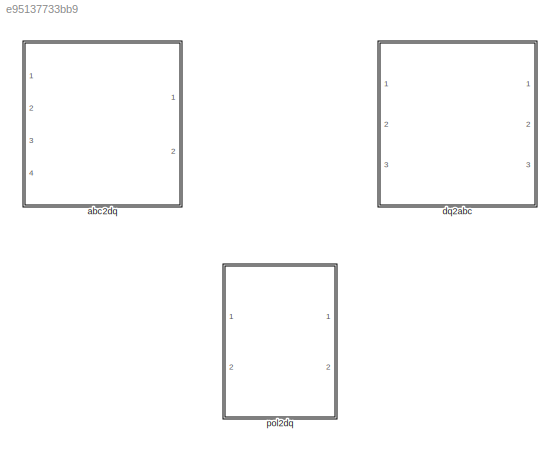
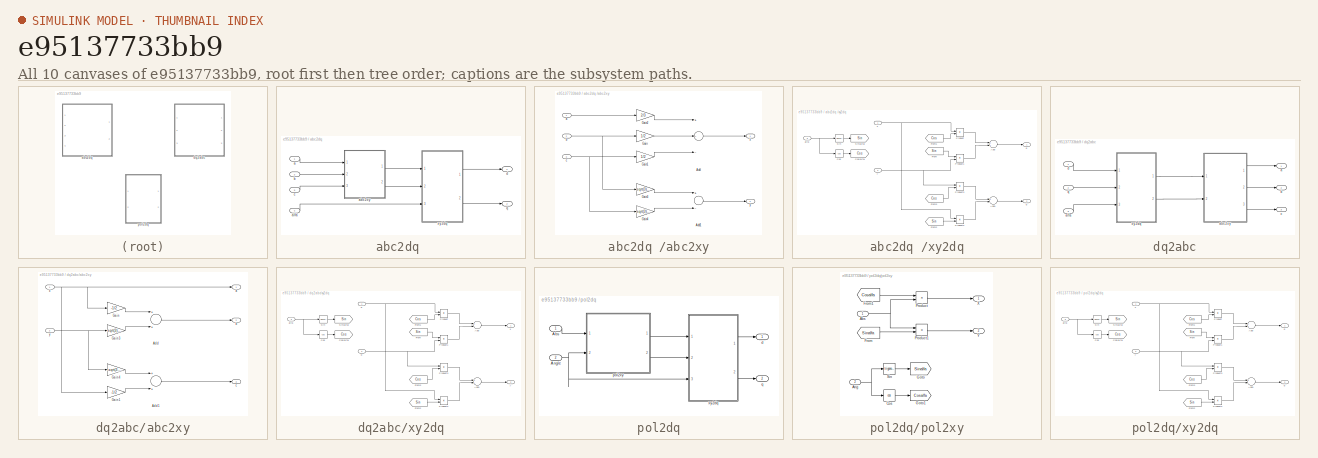
[diagram: thumbnail index - all 10 canvases of the model, root first then tree order]
MODEL slx_e95137733bb9
KIND library
CONFIG AbsTol = auto
CONFIG EnableMultiTasking = off
CONFIG FixedStep = auto
CONFIG MaxStep = auto
CONFIG MinStep = auto
CONFIG RelTol = 1e-3
CONFIG SampleTimeConstraint = Unconstrained
CONFIG Solver = VariableStepAuto
CONFIG SolverName = VariableStepAuto
CONFIG StartTime = 0.0
CONFIG StopTime = 10.0
BLOCK [SubSystem] abc2dq 
  Ports = [4, 2]
  RequestExecContextInheritance = off
  Variant = off
BLOCK [Inport] abc2dq /a
  IconDisplay = Port number
BLOCK [SubSystem] abc2dq /abc2xy
  Ports = [3, 2]
  RequestExecContextInheritance = off
  Variant = off
BLOCK [Sum] abc2dq /abc2xy/Add
  InputSameDT = off
  Inputs = +--
  OutDataTypeStr = Inherit: Inherit via internal rule
  Ports = [3, 1]
  SaturateOnIntegerOverflow = off
BLOCK [Sum] abc2dq /abc2xy/Add1
  InputSameDT = off
  Inputs = +-
  OutDataTypeStr = Inherit: Inherit via internal rule
  Ports = [2, 1]
  SaturateOnIntegerOverflow = off
BLOCK [Gain] abc2dq /abc2xy/Gain
  Gain = 1/2
  OutDataTypeStr = Inherit: Inherit via internal rule
  ParamDataTypeStr = Inherit: Inherit via internal rule
  SaturateOnIntegerOverflow = off
BLOCK [Gain] abc2dq /abc2xy/Gain1
  Gain = 1/2
  OutDataTypeStr = Inherit: Inherit via internal rule
  ParamDataTypeStr = Inherit: Inherit via internal rule
  SaturateOnIntegerOverflow = off
BLOCK [Gain] abc2dq /abc2xy/Gain2
  Gain = 2/3
  OutDataTypeStr = Inherit: Inherit via internal rule
  ParamDataTypeStr = Inherit: Inherit via internal rule
  SaturateOnIntegerOverflow = off
BLOCK [Gain] abc2dq /abc2xy/Gain3
  Gain = sqrt(3)/2
  OutDataTypeStr = Inherit: Inherit via internal rule
  ParamDataTypeStr = Inherit: Inherit via internal rule
  SaturateOnIntegerOverflow = off
BLOCK [Gain] abc2dq /abc2xy/Gain4
  Gain = sqrt(3)/2
  OutDataTypeStr = Inherit: Inherit via internal rule
  ParamDataTypeStr = Inherit: Inherit via internal rule
  SaturateOnIntegerOverflow = off
BLOCK [Inport] abc2dq /abc2xy/a
  IconDisplay = Port number
BLOCK [Inport] abc2dq /abc2xy/b
  IconDisplay = Port number
  Port = 2
BLOCK [Inport] abc2dq /abc2xy/c
  IconDisplay = Port number
  Port = 3
BLOCK [Outport] abc2dq /abc2xy/x
  IconDisplay = Port number
BLOCK [Outport] abc2dq /abc2xy/y
  IconDisplay = Port number
  Port = 2
BLOCK [Inport] abc2dq /alfa
  IconDisplay = Port number
  Port = 4
BLOCK [Inport] abc2dq /b
  IconDisplay = Port number
  Port = 2
BLOCK [Inport] abc2dq /c
  IconDisplay = Port number
  Port = 3
BLOCK [Outport] abc2dq /d
  IconDisplay = Port number
BLOCK [Outport] abc2dq /q
  IconDisplay = Port number
  Port = 2
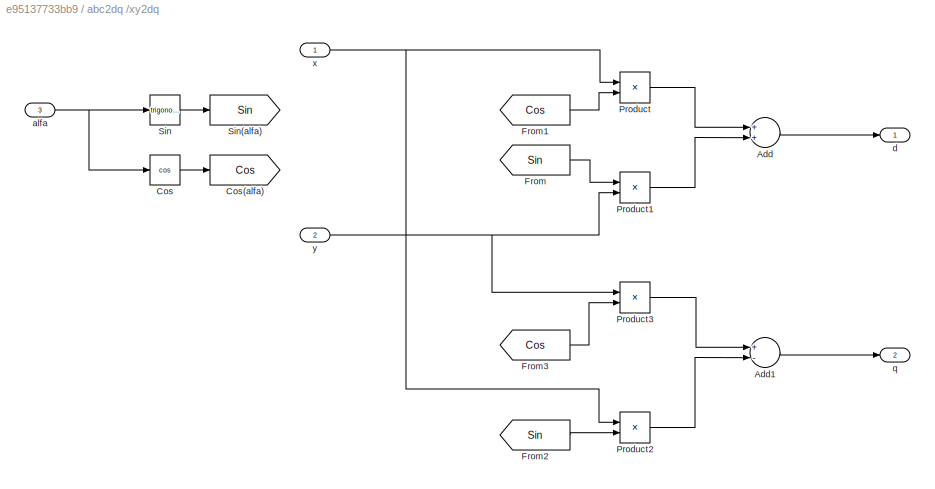
BLOCK [SubSystem] abc2dq /xy2dq
  Ports = [3, 2]
  RequestExecContextInheritance = off
  Variant = off
BLOCK [Sum] abc2dq /xy2dq/Add
  InputSameDT = off
  OutDataTypeStr = Inherit: Inherit via internal rule
  Ports = [2, 1]
  SaturateOnIntegerOverflow = off
BLOCK [Sum] abc2dq /xy2dq/Add1
  InputSameDT = off
  Inputs = +-
  OutDataTypeStr = Inherit: Inherit via internal rule
  Ports = [2, 1]
  SaturateOnIntegerOverflow = off
BLOCK [Trigonometry] abc2dq /xy2dq/Cos
  Operator = cos
  Ports = [1, 1]
BLOCK [Goto] abc2dq /xy2dq/Cos(alfa)
  GotoTag = Cos
BLOCK [From] abc2dq /xy2dq/From
  GotoTag = Sin
BLOCK [From] abc2dq /xy2dq/From1
  GotoTag = Cos
BLOCK [From] abc2dq /xy2dq/From2
  GotoTag = Sin
BLOCK [From] abc2dq /xy2dq/From3
  GotoTag = Cos
BLOCK [Product] abc2dq /xy2dq/Product
  InputSameDT = off
  OutDataTypeStr = Inherit: Inherit via internal rule
  Ports = [2, 1]
  RndMeth = Floor
  SaturateOnIntegerOverflow = off
BLOCK [Product] abc2dq /xy2dq/Product1
  InputSameDT = off
  OutDataTypeStr = Inherit: Inherit via internal rule
  Ports = [2, 1]
  RndMeth = Floor
  SaturateOnIntegerOverflow = off
BLOCK [Product] abc2dq /xy2dq/Product2
  InputSameDT = off
  OutDataTypeStr = Inherit: Inherit via internal rule
  Ports = [2, 1]
  RndMeth = Floor
  SaturateOnIntegerOverflow = off
BLOCK [Product] abc2dq /xy2dq/Product3
  InputSameDT = off
  OutDataTypeStr = Inherit: Inherit via internal rule
  Ports = [2, 1]
  RndMeth = Floor
  SaturateOnIntegerOverflow = off
BLOCK [Trigonometry] abc2dq /xy2dq/Sin
  Ports = [1, 1]
BLOCK [Goto] abc2dq /xy2dq/Sin(alfa)
  GotoTag = Sin
BLOCK [Inport] abc2dq /xy2dq/alfa 
  IconDisplay = Port number
  Port = 3
BLOCK [Outport] abc2dq /xy2dq/d
  IconDisplay = Port number
BLOCK [Outport] abc2dq /xy2dq/q
  IconDisplay = Port number
  Port = 2
BLOCK [Inport] abc2dq /xy2dq/x
  IconDisplay = Port number
BLOCK [Inport] abc2dq /xy2dq/y
  IconDisplay = Port number
  Port = 2
BLOCK [SubSystem] dq2abc
  Ports = [3, 3]
  RequestExecContextInheritance = off
  Variant = off
BLOCK [Outport] dq2abc/a
  IconDisplay = Port number
BLOCK [SubSystem] dq2abc/abc2xy
  Ports = [2, 3]
  RequestExecContextInheritance = off
  Variant = off
BLOCK [Sum] dq2abc/abc2xy/Add
  InputSameDT = off
  OutDataTypeStr = Inherit: Inherit via internal rule
  Ports = [2, 1]
  SaturateOnIntegerOverflow = off
BLOCK [Sum] dq2abc/abc2xy/Add1
  InputSameDT = off
  OutDataTypeStr = Inherit: Inherit via internal rule
  Ports = [2, 1]
  SaturateOnIntegerOverflow = off
BLOCK [Gain] dq2abc/abc2xy/Gain
  Gain = -1/2
  OutDataTypeStr = Inherit: Inherit via internal rule
  ParamDataTypeStr = Inherit: Inherit via internal rule
  SaturateOnIntegerOverflow = off
BLOCK [Gain] dq2abc/abc2xy/Gain1
  Gain = -1/2
  OutDataTypeStr = Inherit: Inherit via internal rule
  ParamDataTypeStr = Inherit: Inherit via internal rule
  SaturateOnIntegerOverflow = off
BLOCK [Gain] dq2abc/abc2xy/Gain3
  Gain = sqrt(3)/2
  OutDataTypeStr = Inherit: Inherit via internal rule
  ParamDataTypeStr = Inherit: Inherit via internal rule
  SaturateOnIntegerOverflow = off
BLOCK [Gain] dq2abc/abc2xy/Gain4
  Gain = -sqrt(3)/2
  OutDataTypeStr = Inherit: Inherit via internal rule
  ParamDataTypeStr = Inherit: Inherit via internal rule
  SaturateOnIntegerOverflow = off
BLOCK [Outport] dq2abc/abc2xy/a
  IconDisplay = Port number
BLOCK [Outport] dq2abc/abc2xy/b
  IconDisplay = Port number
  Port = 2
BLOCK [Outport] dq2abc/abc2xy/c
  IconDisplay = Port number
  Port = 3
BLOCK [Inport] dq2abc/abc2xy/x
  IconDisplay = Port number
BLOCK [Inport] dq2abc/abc2xy/y
  IconDisplay = Port number
  Port = 2
BLOCK [Inport] dq2abc/alfa
  IconDisplay = Port number
  Port = 3
BLOCK [Outport] dq2abc/b
  IconDisplay = Port number
  Port = 2
BLOCK [Outport] dq2abc/c
  IconDisplay = Port number
  Port = 3
BLOCK [Inport] dq2abc/d
  IconDisplay = Port number
BLOCK [Inport] dq2abc/q
  IconDisplay = Port number
  Port = 2
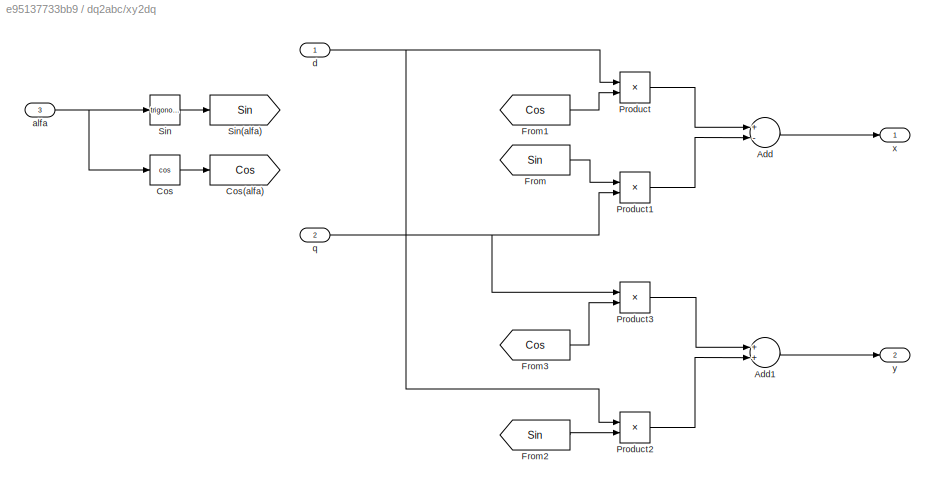
BLOCK [SubSystem] dq2abc/xy2dq
  Ports = [3, 2]
  RequestExecContextInheritance = off
  Variant = off
BLOCK [Sum] dq2abc/xy2dq/Add
  InputSameDT = off
  Inputs = +-
  OutDataTypeStr = Inherit: Inherit via internal rule
  Ports = [2, 1]
  SaturateOnIntegerOverflow = off
BLOCK [Sum] dq2abc/xy2dq/Add1
  InputSameDT = off
  OutDataTypeStr = Inherit: Inherit via internal rule
  Ports = [2, 1]
  SaturateOnIntegerOverflow = off
BLOCK [Trigonometry] dq2abc/xy2dq/Cos
  Operator = cos
  Ports = [1, 1]
BLOCK [Goto] dq2abc/xy2dq/Cos(alfa)
  GotoTag = Cos
BLOCK [From] dq2abc/xy2dq/From
  GotoTag = Sin
BLOCK [From] dq2abc/xy2dq/From1
  GotoTag = Cos
BLOCK [From] dq2abc/xy2dq/From2
  GotoTag = Sin
BLOCK [From] dq2abc/xy2dq/From3
  GotoTag = Cos
BLOCK [Product] dq2abc/xy2dq/Product
  InputSameDT = off
  OutDataTypeStr = Inherit: Inherit via internal rule
  Ports = [2, 1]
  RndMeth = Floor
  SaturateOnIntegerOverflow = off
BLOCK [Product] dq2abc/xy2dq/Product1
  InputSameDT = off
  OutDataTypeStr = Inherit: Inherit via internal rule
  Ports = [2, 1]
  RndMeth = Floor
  SaturateOnIntegerOverflow = off
BLOCK [Product] dq2abc/xy2dq/Product2
  InputSameDT = off
  OutDataTypeStr = Inherit: Inherit via internal rule
  Ports = [2, 1]
  RndMeth = Floor
  SaturateOnIntegerOverflow = off
BLOCK [Product] dq2abc/xy2dq/Product3
  InputSameDT = off
  OutDataTypeStr = Inherit: Inherit via internal rule
  Ports = [2, 1]
  RndMeth = Floor
  SaturateOnIntegerOverflow = off
BLOCK [Trigonometry] dq2abc/xy2dq/Sin
  Ports = [1, 1]
BLOCK [Goto] dq2abc/xy2dq/Sin(alfa)
  GotoTag = Sin
BLOCK [Inport] dq2abc/xy2dq/alfa 
  IconDisplay = Port number
  Port = 3
BLOCK [Inport] dq2abc/xy2dq/d
  IconDisplay = Port number
BLOCK [Inport] dq2abc/xy2dq/q
  IconDisplay = Port number
  Port = 2
BLOCK [Outport] dq2abc/xy2dq/x
  IconDisplay = Port number
BLOCK [Outport] dq2abc/xy2dq/y
  IconDisplay = Port number
  Port = 2
BLOCK [SubSystem] pol2dq
  Ports = [2, 2]
  RequestExecContextInheritance = off
  Variant = off
BLOCK [Inport] pol2dq/Abs
  IconDisplay = Port number
BLOCK [Inport] pol2dq/Angle
  IconDisplay = Port number
  Port = 2
BLOCK [Outport] pol2dq/d
  IconDisplay = Port number
BLOCK [SubSystem] pol2dq/pol2xy
  Ports = [2, 2]
  RequestExecContextInheritance = off
  Variant = off
BLOCK [Inport] pol2dq/pol2xy/Abs
  IconDisplay = Port number
BLOCK [Inport] pol2dq/pol2xy/Ang
  IconDisplay = Port number
  Port = 2
BLOCK [Trigonometry] pol2dq/pol2xy/Cos
  Operator = cos
  Ports = [1, 1]
BLOCK [From] pol2dq/pol2xy/From
  GotoTag = Sinalfa
BLOCK [From] pol2dq/pol2xy/From1
  GotoTag = Cosalfa
BLOCK [Goto] pol2dq/pol2xy/Goto
  GotoTag = Sinalfa
BLOCK [Goto] pol2dq/pol2xy/Goto1
  GotoTag = Cosalfa
BLOCK [Product] pol2dq/pol2xy/Product
  InputSameDT = off
  OutDataTypeStr = Inherit: Inherit via internal rule
  Ports = [2, 1]
  RndMeth = Floor
  SaturateOnIntegerOverflow = off
BLOCK [Product] pol2dq/pol2xy/Product1
  InputSameDT = off
  OutDataTypeStr = Inherit: Inherit via internal rule
  Ports = [2, 1]
  RndMeth = Floor
  SaturateOnIntegerOverflow = off
BLOCK [Trigonometry] pol2dq/pol2xy/Sin
  Ports = [1, 1]
BLOCK [Outport] pol2dq/pol2xy/X
  IconDisplay = Port number
BLOCK [Outport] pol2dq/pol2xy/Y
  IconDisplay = Port number
  Port = 2
BLOCK [Outport] pol2dq/q
  IconDisplay = Port number
  Port = 2
BLOCK [SubSystem] pol2dq/xy2dq
  Ports = [3, 2]
  RequestExecContextInheritance = off
  Variant = off
BLOCK [Sum] pol2dq/xy2dq/Add
  InputSameDT = off
  OutDataTypeStr = Inherit: Inherit via internal rule
  Ports = [2, 1]
  SaturateOnIntegerOverflow = off
BLOCK [Sum] pol2dq/xy2dq/Add1
  InputSameDT = off
  Inputs = +-
  OutDataTypeStr = Inherit: Inherit via internal rule
  Ports = [2, 1]
  SaturateOnIntegerOverflow = off
BLOCK [Trigonometry] pol2dq/xy2dq/Cos
  Operator = cos
  Ports = [1, 1]
BLOCK [Goto] pol2dq/xy2dq/Cos(alfa)
  GotoTag = Cos
BLOCK [From] pol2dq/xy2dq/From
  GotoTag = Sin
BLOCK [From] pol2dq/xy2dq/From1
  GotoTag = Cos
BLOCK [From] pol2dq/xy2dq/From2
  GotoTag = Sin
BLOCK [From] pol2dq/xy2dq/From3
  GotoTag = Cos
BLOCK [Product] pol2dq/xy2dq/Product
  InputSameDT = off
  OutDataTypeStr = Inherit: Inherit via internal rule
  Ports = [2, 1]
  RndMeth = Floor
  SaturateOnIntegerOverflow = off
BLOCK [Product] pol2dq/xy2dq/Product1
  InputSameDT = off
  OutDataTypeStr = Inherit: Inherit via internal rule
  Ports = [2, 1]
  RndMeth = Floor
  SaturateOnIntegerOverflow = off
BLOCK [Product] pol2dq/xy2dq/Product2
  InputSameDT = off
  OutDataTypeStr = Inherit: Inherit via internal rule
  Ports = [2, 1]
  RndMeth = Floor
  SaturateOnIntegerOverflow = off
BLOCK [Product] pol2dq/xy2dq/Product3
  InputSameDT = off
  OutDataTypeStr = Inherit: Inherit via internal rule
  Ports = [2, 1]
  RndMeth = Floor
  SaturateOnIntegerOverflow = off
BLOCK [Trigonometry] pol2dq/xy2dq/Sin
  Ports = [1, 1]
BLOCK [Goto] pol2dq/xy2dq/Sin(alfa)
  GotoTag = Sin
BLOCK [Inport] pol2dq/xy2dq/alfa 
  IconDisplay = Port number
  Port = 3
BLOCK [Outport] pol2dq/xy2dq/d
  IconDisplay = Port number
BLOCK [Outport] pol2dq/xy2dq/q
  IconDisplay = Port number
  Port = 2
BLOCK [Inport] pol2dq/xy2dq/x
  IconDisplay = Port number
BLOCK [Inport] pol2dq/xy2dq/y
  IconDisplay = Port number
  Port = 2
LINE abc2dq /a:1 -> abc2dq /abc2xy:1
LINE abc2dq /abc2xy/Add1:1 -> abc2dq /abc2xy/y:1
LINE abc2dq /abc2xy/Add:1 -> abc2dq /abc2xy/x:1
LINE abc2dq /abc2xy/Gain1:1 -> abc2dq /abc2xy/Add:3
LINE abc2dq /abc2xy/Gain2:1 -> abc2dq /abc2xy/Add:1
LINE abc2dq /abc2xy/Gain3:1 -> abc2dq /abc2xy/Add1:1
LINE abc2dq /abc2xy/Gain4:1 -> abc2dq /abc2xy/Add1:2
LINE abc2dq /abc2xy/Gain:1 -> abc2dq /abc2xy/Add:2
LINE abc2dq /abc2xy/a:1 -> abc2dq /abc2xy/Gain2:1
NET abc2dq /abc2xy/b:1 -> abc2dq /abc2xy/Gain3:1, abc2dq /abc2xy/Gain:1
NET abc2dq /abc2xy/c:1 -> abc2dq /abc2xy/Gain1:1, abc2dq /abc2xy/Gain4:1
LINE abc2dq /abc2xy:1 -> abc2dq /xy2dq:1
LINE abc2dq /abc2xy:2 -> abc2dq /xy2dq:2
LINE abc2dq /alfa:1 -> abc2dq /xy2dq:3
LINE abc2dq /b:1 -> abc2dq /abc2xy:2
LINE abc2dq /c:1 -> abc2dq /abc2xy:3
LINE abc2dq /xy2dq/Add1:1 -> abc2dq /xy2dq/q:1
LINE abc2dq /xy2dq/Add:1 -> abc2dq /xy2dq/d:1
LINE abc2dq /xy2dq/Cos:1 -> abc2dq /xy2dq/Cos(alfa):1
LINE abc2dq /xy2dq/From1:1 -> abc2dq /xy2dq/Product:2
LINE abc2dq /xy2dq/From2:1 -> abc2dq /xy2dq/Product2:2
LINE abc2dq /xy2dq/From3:1 -> abc2dq /xy2dq/Product3:2
LINE abc2dq /xy2dq/From:1 -> abc2dq /xy2dq/Product1:1
LINE abc2dq /xy2dq/Product1:1 -> abc2dq /xy2dq/Add:2
LINE abc2dq /xy2dq/Product2:1 -> abc2dq /xy2dq/Add1:2
LINE abc2dq /xy2dq/Product3:1 -> abc2dq /xy2dq/Add1:1
LINE abc2dq /xy2dq/Product:1 -> abc2dq /xy2dq/Add:1
LINE abc2dq /xy2dq/Sin:1 -> abc2dq /xy2dq/Sin(alfa):1
NET abc2dq /xy2dq/alfa :1 -> abc2dq /xy2dq/Cos:1, abc2dq /xy2dq/Sin:1
NET abc2dq /xy2dq/x:1 -> abc2dq /xy2dq/Product2:1, abc2dq /xy2dq/Product:1
NET abc2dq /xy2dq/y:1 -> abc2dq /xy2dq/Product1:2, abc2dq /xy2dq/Product3:1
LINE abc2dq /xy2dq:1 -> abc2dq /d:1
LINE abc2dq /xy2dq:2 -> abc2dq /q:1
LINE dq2abc/abc2xy/Add1:1 -> dq2abc/abc2xy/c:1
LINE dq2abc/abc2xy/Add:1 -> dq2abc/abc2xy/b:1
LINE dq2abc/abc2xy/Gain1:1 -> dq2abc/abc2xy/Add1:2
LINE dq2abc/abc2xy/Gain3:1 -> dq2abc/abc2xy/Add:2
LINE dq2abc/abc2xy/Gain4:1 -> dq2abc/abc2xy/Add1:1
LINE dq2abc/abc2xy/Gain:1 -> dq2abc/abc2xy/Add:1
NET dq2abc/abc2xy/x:1 -> dq2abc/abc2xy/Gain1:1, dq2abc/abc2xy/Gain:1, dq2abc/abc2xy/a:1
NET dq2abc/abc2xy/y:1 -> dq2abc/abc2xy/Gain3:1, dq2abc/abc2xy/Gain4:1
LINE dq2abc/abc2xy:1 -> dq2abc/a:1
LINE dq2abc/abc2xy:2 -> dq2abc/b:1
LINE dq2abc/abc2xy:3 -> dq2abc/c:1
LINE dq2abc/alfa:1 -> dq2abc/xy2dq:3
LINE dq2abc/d:1 -> dq2abc/xy2dq:1
LINE dq2abc/q:1 -> dq2abc/xy2dq:2
LINE dq2abc/xy2dq/Add1:1 -> dq2abc/xy2dq/y:1
LINE dq2abc/xy2dq/Add:1 -> dq2abc/xy2dq/x:1
LINE dq2abc/xy2dq/Cos:1 -> dq2abc/xy2dq/Cos(alfa):1
LINE dq2abc/xy2dq/From1:1 -> dq2abc/xy2dq/Product:2
LINE dq2abc/xy2dq/From2:1 -> dq2abc/xy2dq/Product2:2
LINE dq2abc/xy2dq/From3:1 -> dq2abc/xy2dq/Product3:2
LINE dq2abc/xy2dq/From:1 -> dq2abc/xy2dq/Product1:1
LINE dq2abc/xy2dq/Product1:1 -> dq2abc/xy2dq/Add:2
LINE dq2abc/xy2dq/Product2:1 -> dq2abc/xy2dq/Add1:2
LINE dq2abc/xy2dq/Product3:1 -> dq2abc/xy2dq/Add1:1
LINE dq2abc/xy2dq/Product:1 -> dq2abc/xy2dq/Add:1
LINE dq2abc/xy2dq/Sin:1 -> dq2abc/xy2dq/Sin(alfa):1
NET dq2abc/xy2dq/alfa :1 -> dq2abc/xy2dq/Cos:1, dq2abc/xy2dq/Sin:1
NET dq2abc/xy2dq/d:1 -> dq2abc/xy2dq/Product2:1, dq2abc/xy2dq/Product:1
NET dq2abc/xy2dq/q:1 -> dq2abc/xy2dq/Product1:2, dq2abc/xy2dq/Product3:1
LINE dq2abc/xy2dq:1 -> dq2abc/abc2xy:1
LINE dq2abc/xy2dq:2 -> dq2abc/abc2xy:2
LINE pol2dq/Abs:1 -> pol2dq/pol2xy:1
NET pol2dq/Angle:1 -> pol2dq/pol2xy:2, pol2dq/xy2dq:3
NET pol2dq/pol2xy/Abs:1 -> pol2dq/pol2xy/Product1:1, pol2dq/pol2xy/Product:2
NET pol2dq/pol2xy/Ang:1 -> pol2dq/pol2xy/Cos:1, pol2dq/pol2xy/Sin:1
LINE pol2dq/pol2xy/Cos:1 -> pol2dq/pol2xy/Goto1:1
LINE pol2dq/pol2xy/From1:1 -> pol2dq/pol2xy/Product:1
LINE pol2dq/pol2xy/From:1 -> pol2dq/pol2xy/Product1:2
LINE pol2dq/pol2xy/Product1:1 -> pol2dq/pol2xy/Y:1
LINE pol2dq/pol2xy/Product:1 -> pol2dq/pol2xy/X:1
LINE pol2dq/pol2xy/Sin:1 -> pol2dq/pol2xy/Goto:1
LINE pol2dq/pol2xy:1 -> pol2dq/xy2dq:1
LINE pol2dq/pol2xy:2 -> pol2dq/xy2dq:2
LINE pol2dq/xy2dq/Add1:1 -> pol2dq/xy2dq/q:1
LINE pol2dq/xy2dq/Add:1 -> pol2dq/xy2dq/d:1
LINE pol2dq/xy2dq/Cos:1 -> pol2dq/xy2dq/Cos(alfa):1
LINE pol2dq/xy2dq/From1:1 -> pol2dq/xy2dq/Product:2
LINE pol2dq/xy2dq/From2:1 -> pol2dq/xy2dq/Product2:2
LINE pol2dq/xy2dq/From3:1 -> pol2dq/xy2dq/Product3:2
LINE pol2dq/xy2dq/From:1 -> pol2dq/xy2dq/Product1:1
LINE pol2dq/xy2dq/Product1:1 -> pol2dq/xy2dq/Add:2
LINE pol2dq/xy2dq/Product2:1 -> pol2dq/xy2dq/Add1:2
LINE pol2dq/xy2dq/Product3:1 -> pol2dq/xy2dq/Add1:1
LINE pol2dq/xy2dq/Product:1 -> pol2dq/xy2dq/Add:1
LINE pol2dq/xy2dq/Sin:1 -> pol2dq/xy2dq/Sin(alfa):1
NET pol2dq/xy2dq/alfa :1 -> pol2dq/xy2dq/Cos:1, pol2dq/xy2dq/Sin:1
NET pol2dq/xy2dq/x:1 -> pol2dq/xy2dq/Product2:1, pol2dq/xy2dq/Product:1
NET pol2dq/xy2dq/y:1 -> pol2dq/xy2dq/Product1:2, pol2dq/xy2dq/Product3:1
LINE pol2dq/xy2dq:1 -> pol2dq/d:1
LINE pol2dq/xy2dq:2 -> pol2dq/q:1
note: NET lines group one-source signal fan-out (src -> all destinations, sorted); 1:1 wires keep LINE
